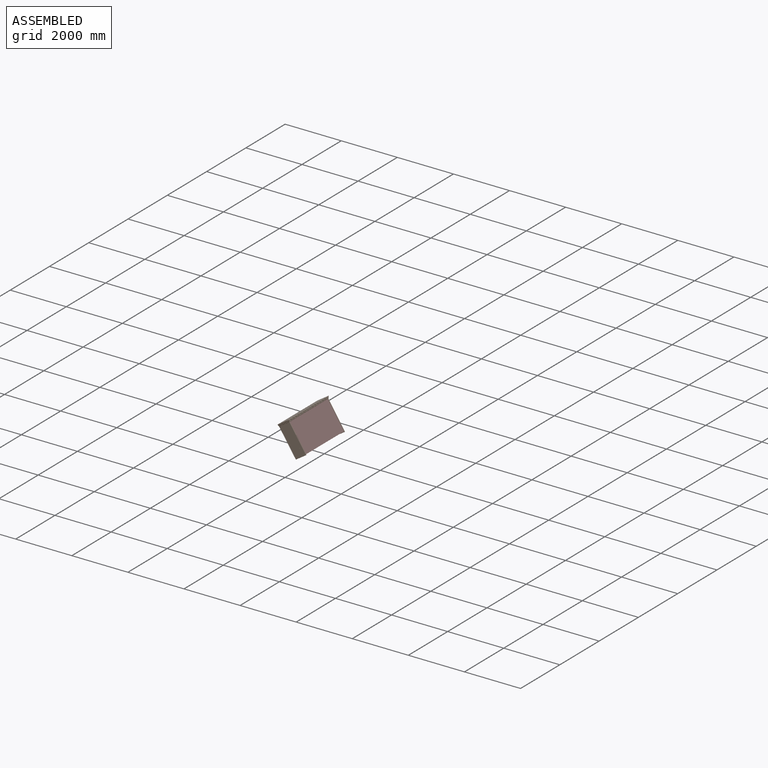
[diagram: assembled view]
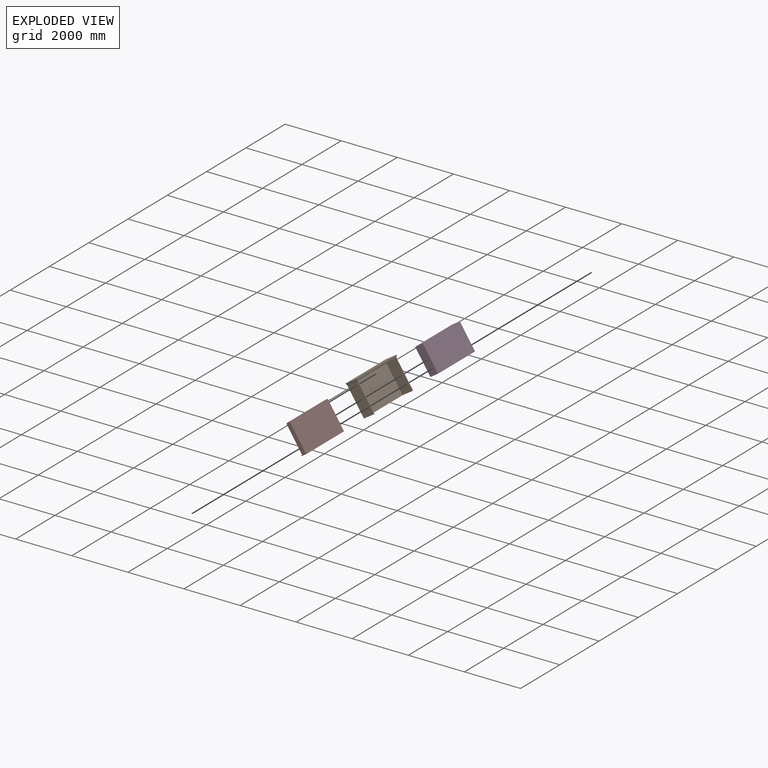
[diagram: exploded view]
GUIDED TOUR — MATED ASSEMBLY (Onshape document f06884bef4abd37ec8bd1d48, AutoMate assembly f06884bef4abd37ec8bd1d48_18d466214ae3073c1a5c1cfb_0f7172fed6433e7fdf9dc04e_default)

This assembly has 21 components, labeled P0..P20 below (a component is one placed occurrence of a part; the same part can appear more than once), held together by 22 mates. A mate is a constraint between two components; its type names the relative motion it leaves free:
  PLANAR — leaves sliding in the plane through the listed point (normal = the listed direction) and rotation about that normal free,
  REVOLUTE — leaves rotation about the listed axis free (a hinge).
Axis/direction vectors are unit vectors and 'through' points are millimeter coordinates, both in the assembly's world frame.

MATES
  1. REVOLUTE "Revolute 14": P14 <-> P7, axis (0.000, 1.000, 0.000) through (-254.89, 1122.72, 1074.25) mm
  2. REVOLUTE "Revolute 2": P12 <-> P17, axis (0.000, 1.000, 0.000) through (-254.89, -879.64, 1074.25) mm
  3. REVOLUTE "Revolute 3": P4 <-> P12, axis (0.000, -1.000, 0.000) through (-254.89, -879.64, 1074.25) mm
  4. REVOLUTE "Revolute 16": P9 <-> P12, axis (0.000, -1.000, 0.000) through (-254.89, -881.75, 1074.25) mm
  5. REVOLUTE "Revolute 9": P11 <-> P17, axis (0.000, -1.000, 0.000) through (-254.89, 1101.56, 1074.25) mm
  6. REVOLUTE "Revolute 12": P13 <-> P5, axis (0.000, -1.000, 0.000) through (-254.89, -858.48, 1074.25) mm
  7. REVOLUTE "Revolute 1": P15 <-> P5, axis (0.000, -1.000, 0.000) through (-254.89, -860.07, 1074.25) mm
  8. REVOLUTE "Revolute 6": P0 <-> P1, axis (0.000, -1.000, 0.000) through (-254.89, 1082.51, 1074.25) mm
  9. REVOLUTE "Revolute 13": P20 <-> P14, axis (0.000, 1.000, 0.000) through (-254.89, 1113.19, 1074.25) mm
  10. REVOLUTE "Revolute 17": P19 <-> P8, axis (0.000, 1.000, 0.000) through (-254.89, -837.32, 1074.25) mm
  11. PLANAR "Planar 3": P15 <-> P3, direction (0.000, -1.000, 0.000) through (-409.49, 1051.28, 1339.78) mm
  12. REVOLUTE "Revolute 10": P10 <-> P13, axis (0.000, 1.000, 0.000) through (-254.89, -848.96, 1074.25) mm
  13. REVOLUTE "Revolute 4": P16 <-> P4, axis (0.000, -1.000, 0.000) through (-254.89, -870.12, 1074.25) mm
  14. REVOLUTE "Revolute 5": P5 <-> P16, axis (0.000, -1.000, 0.000) through (-254.89, -860.59, 1074.25) mm
  15. REVOLUTE "Revolute 11": P10 <-> P8, axis (0.000, 1.000, 0.000) through (-254.89, -839.43, 1074.25) mm
  16. REVOLUTE "Revolute 19": P2 <-> P7, axis (0.000, -1.000, 0.000) through (-254.89, 1124.83, 1074.25) mm
  17. REVOLUTE "Revolute 8": P11 <-> P18, axis (0.000, -1.000, 0.000) through (-254.89, 1101.56, 1074.25) mm
  18. PLANAR "Planar 1": P15 <-> P3, direction (-0.837, 0.000, -0.547) through (-352.49, 105.13, 1374.57) mm
  19. REVOLUTE "Revolute 7": P18 <-> P0, axis (0.000, -1.000, 0.000) through (-254.89, 1092.03, 1074.25) mm
  20. REVOLUTE "Revolute 15": P20 <-> P11, axis (0.000, -1.000, 0.000) through (-254.89, 1103.67, 1074.25) mm
  21. REVOLUTE "Revolute 18": P6 <-> P1, axis (0.000, -1.000, 0.000) through (-254.89, 1080.40, 1074.25) mm
  22. PLANAR "Planar 2": P15 <-> P3, direction (-0.547, 0.000, 0.837) through (-151.25, 105.13, 891.65) mm

ASSEMBLY ORDER
  1. P15 — the base component [order verified]
  2. P17 [order verified]
  3. P3 [order verified]
  4. P5 [order verified]
  5. P9 [order verified]
  6. P16 [order verified]
  7. P13 [order verified]
  8. P4 [order verified]
  9. P10 [order verified]
  10. P8 [order verified]
  11. P12 [order verified]
  12. P19 [order verified]
  13. P1 [order verified]
  14. P0 [order verified]
  15. P18 [order verified]
  16. P11 [order verified]
  17. P6 [order verified]
  18. P20 [order verified]
  19. P14 [order verified]
  20. P7 [order verified]
  21. P2 [order verified]
(P3, P17 verified with a relaxed clearance tolerance: the source model stores slight part interference there.)
Order-tag legend:
  [order verified] — this step's position reverses a verified removal order: the component was checked to insert without passing through the ones already placed.

Of the 21 components, 21 carry the full construction recipe — the FeatureScript program that regenerates the part's solid from scratch; the rest are supplied as boundary geometry only.
Because this assembly has more than 12 components, the tour below covers the 12 most significant ones individually (every recipe-attached component first, then the largest by part volume), in assembly order; the remaining 9 are summarized together in a grouped section at the end.
Each toured component is shown spotlighted twice — in the assembled view, then in the exploded view, where a leader line traces a displaced component back to its assembled socket (saturated green if recipe-attached, orange if geometry-only; every other component desaturated gray) — followed by its recipe or geometry summary and the mates that hold it.
NOTE — document 2 of 2 of this assembly tour. The two overview renders and the header above are repeated from document 1; the component sections below continue where the previous document stopped.
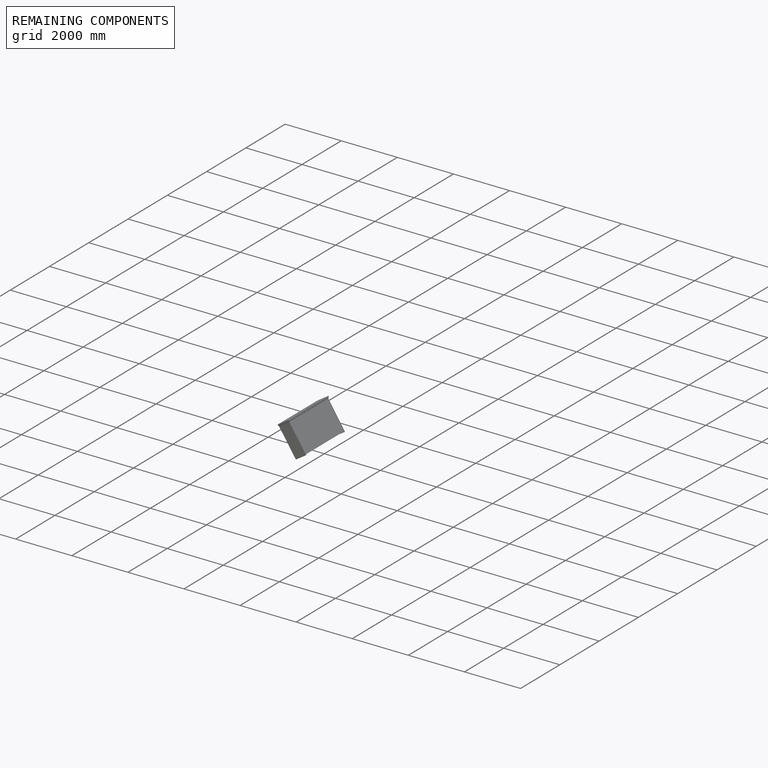
[diagram: remaining components — assembled]
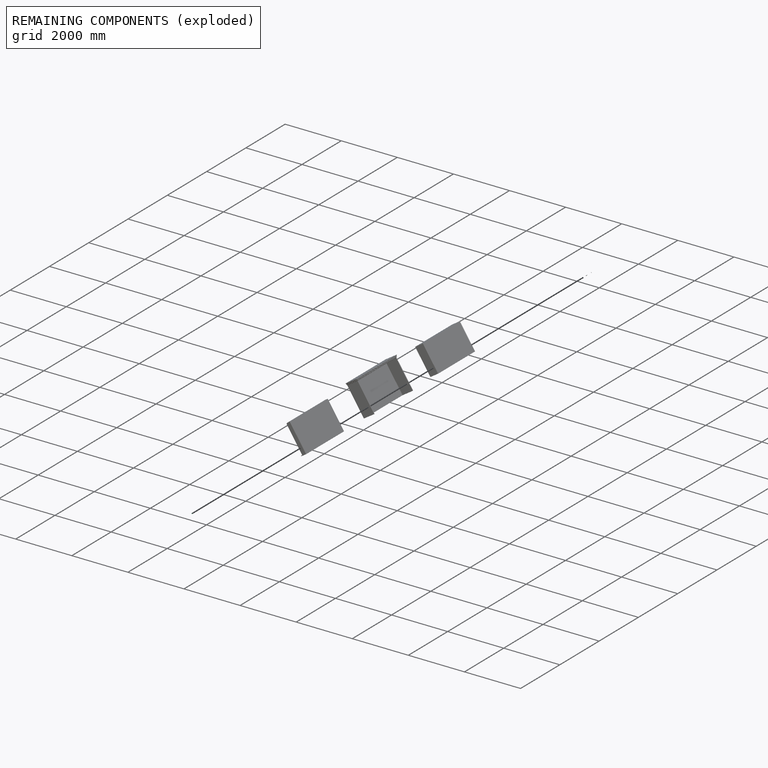
[diagram: remaining components — exploded]
REMAINING COMPONENTS (grouped) — the 9 components below fall outside the per-component tour by the significance rule stated above; both spotlight views highlight the whole group.
  P5: bounding box 31.8 x 31.8 x 2.1 mm, volume 1402 mm^3. Recipe-attached (CADFS 00953850; recipe not printed under the significance rule). Held by: REVOLUTE mate "Revolute 12" to P13; REVOLUTE mate "Revolute 1" to P15; REVOLUTE mate "Revolute 5" to P16.
  P16: bounding box 19.1 x 19.1 x 9.5 mm, volume 1508 mm^3. Recipe-attached (CADFS 00953849; recipe not printed under the significance rule). Held by: REVOLUTE mate "Revolute 4" to P4; REVOLUTE mate "Revolute 5" to P5.
  P8: bounding box 31.8 x 31.8 x 2.1 mm, volume 1402 mm^3. Recipe-attached (CADFS 00953850; recipe not printed under the significance rule). Held by: REVOLUTE mate "Revolute 17" to P19; REVOLUTE mate "Revolute 11" to P10.
  P12: bounding box 31.8 x 31.8 x 2.1 mm, volume 1402 mm^3. Recipe-attached (CADFS 00953850; recipe not printed under the significance rule). Held by: REVOLUTE mate "Revolute 2" to P17; REVOLUTE mate "Revolute 3" to P4; REVOLUTE mate "Revolute 16" to P9.
  P1: bounding box 31.8 x 31.8 x 2.1 mm, volume 1402 mm^3. Recipe-attached (CADFS 00953850; recipe not printed under the significance rule). Held by: REVOLUTE mate "Revolute 6" to P0; REVOLUTE mate "Revolute 18" to P6.
  P18: bounding box 19.1 x 19.1 x 9.5 mm, volume 1508 mm^3. Recipe-attached (CADFS 00953849; recipe not printed under the significance rule). Held by: REVOLUTE mate "Revolute 8" to P11; REVOLUTE mate "Revolute 7" to P0.
  P11: bounding box 31.8 x 31.8 x 2.1 mm, volume 1402 mm^3. Recipe-attached (CADFS 00953850; recipe not printed under the significance rule). Held by: REVOLUTE mate "Revolute 9" to P17; REVOLUTE mate "Revolute 8" to P18; REVOLUTE mate "Revolute 15" to P20.
  P20: bounding box 19.1 x 19.1 x 9.5 mm, volume 1508 mm^3. Recipe-attached (CADFS 00953849; recipe not printed under the significance rule). Held by: REVOLUTE mate "Revolute 13" to P14; REVOLUTE mate "Revolute 15" to P11.
  P7: bounding box 31.8 x 31.8 x 2.1 mm, volume 1402 mm^3. Recipe-attached (CADFS 00953850; recipe not printed under the significance rule). Held by: REVOLUTE mate "Revolute 14" to P14; REVOLUTE mate "Revolute 19" to P2.
PROVENANCE & LICENSES
Assembly (occurrences, transforms, mates, per-part STEP geometry): AutoMate dataset, Zenodo record 7776208, CC0.
Construction recipes: CADFS (HuggingFace VladPyatov/CADFS, CC-BY-4.0, layered over the ABC dataset), FeatureScript reconstruction programs keyed by ABC model id.
Join: ABC meta listings map ABC model id -> Onshape documentId; within a shared document, parts are matched by geometric signature (bounding-box dims + volume at 0.1% relative tolerance, exact B-rep face/solid counts).
Verification: 21 of this assembly's 21 components carry a recipe attachment, and every attachment is mesh-verified: the CADFS STEP and the AutoMate member STEP were compared as meshes in their shared local frame (symmetric sampled-point-to-mesh distance); worst across the 21 attachments: below the mesh-comparison resolution (tessellation chordal tolerance ~3.6 mm) on a 2397 mm part.
Renders: orthographic iso camera (az 35 / el 25); the floor grid conveys scale (grid pitch printed in each image; no ruler). In the exploded view each component is displaced by its stored offset vector: the offsets alone carry the explosion direction (mate normal/axis signs are not orientation cues and do not encode it), and separation distances are assigned per mate-chain, not proportionally to assembly-order depth.
